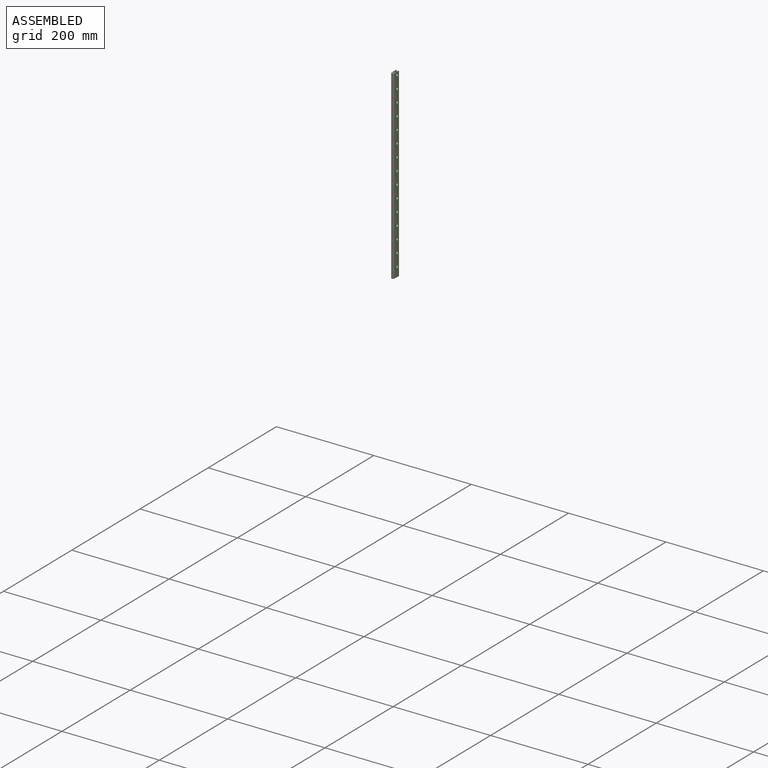
[diagram: assembled view]
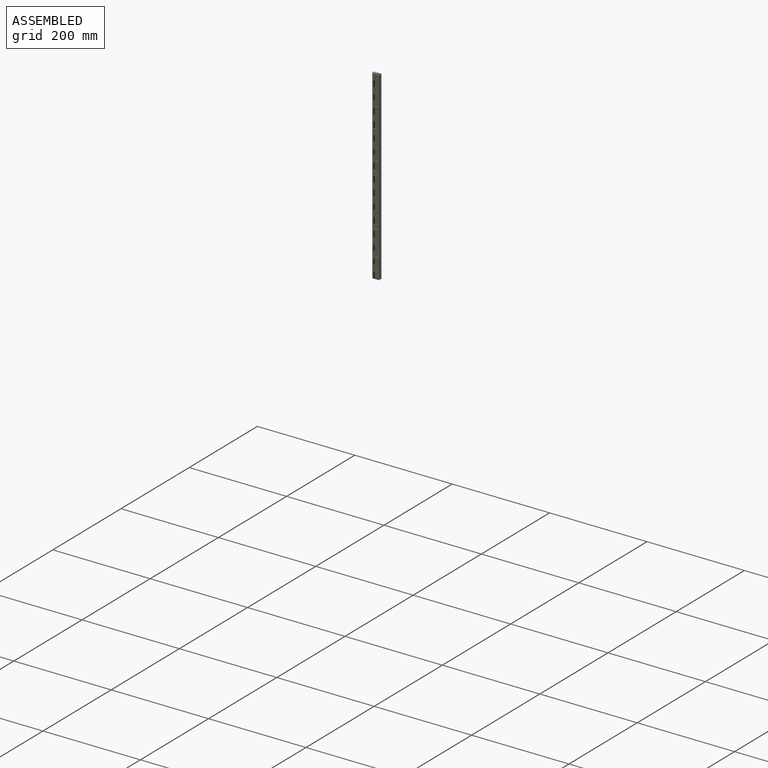
[diagram: assembled view, second angle]
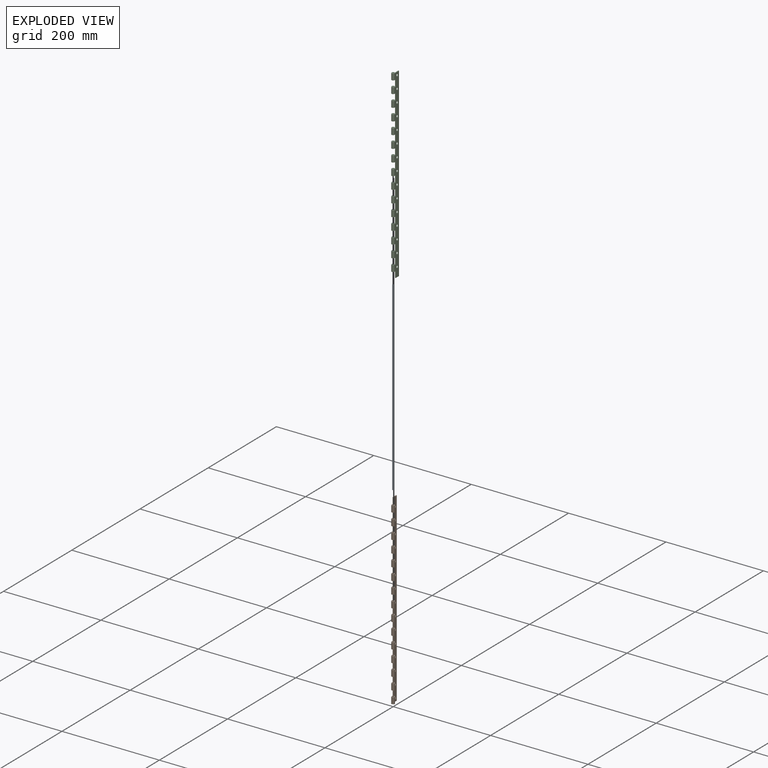
[diagram: exploded view]
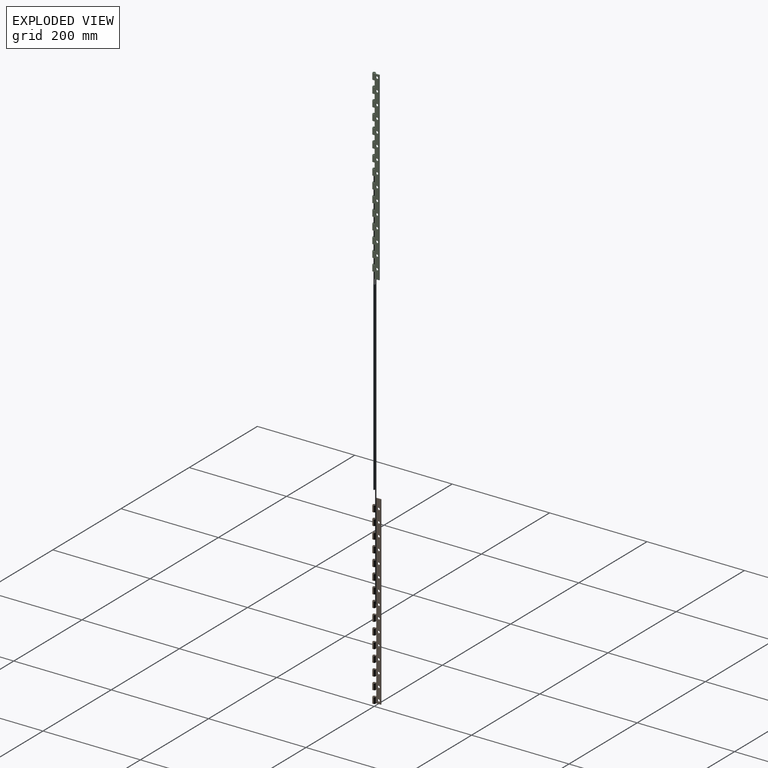
[diagram: exploded view, second angle]
ASSEMBLY  parts=3 mates=2
PART A: 3 faces, bbox 3.2x3.2x381 mm
  f0: cylinder r=1.59mm len=381mm, axis (0,0,-1), area 3800.3mm2, adj f1,f2
  f1: plane 3.18x3.18mm, normal (0,0,1), area 7.9mm2, adj f0
  f2: plane 3.18x3.18mm, normal (0,0,-1), area 7.9mm2, adj f0
PART B: 139 faces, bbox 6.4x15.9x381 mm
  f0: plane 12.7x1.08mm, normal (0,1,0), area 13.7mm2, adj f43,f57,f114,f126
  f1: plane 12.7x1.08mm, normal (0,1,0), area 13.7mm2, adj f44,f58,f123,f127
  f2: plane 12.7x1.08mm, normal (0,1,0), area 13.7mm2, adj f45,f60,f111,f113
  f3: plane 12.7x1.08mm, normal (0,1,0), area 13.7mm2, adj f46,f61,f108,f110
  f4: plane 12.7x1.08mm, normal (0,1,0), area 13.7mm2, adj f47,f62,f105,f107
  f5: plane 12.7x1.08mm, normal (0,1,0), area 13.7mm2, adj f48,f63,f102,f104
  f6: plane 12.7x1.08mm, normal (0,1,0), area 13.7mm2, adj f49,f64,f99,f101
  f7: plane 12.7x1.08mm, normal (0,1,0), area 13.7mm2, adj f50,f65,f96,f98
  f8: plane 12.7x1.08mm, normal (0,1,0), area 13.7mm2, adj f51,f66,f93,f95
  f9: plane 12.7x1.08mm, normal (0,1,0), area 13.7mm2, adj f52,f67,f90,f92
  f10: plane 12.7x1.08mm, normal (0,1,0), area 13.7mm2, adj f53,f68,f87,f89
  f11: plane 12.7x1.08mm, normal (0,1,0), area 13.7mm2, adj f54,f69,f84,f86
  f12: plane 12.7x1.08mm, normal (0,1,0), area 13.7mm2, adj f55,f70,f81,f83
  f13: plane 12.7x1.08mm, normal (0,1,0), area 13.7mm2, adj f56,f71,f80,f137
  f14: plane 381x12.7mm, normal (-1,0,0), area 3966.7mm2, adj f15,f16,f17,f18,f19,f20,f21,f22
  f15: cylinder r=1.59mm len=12.7mm, axis (0,0,-1), area 95mm2, adj f14,f29,f114,f126
  f16: cylinder r=1.59mm len=12.7mm, axis (0,0,-1), area 95mm2, adj f14,f30,f123,f127
  f17: cylinder r=1.59mm len=12.7mm, axis (0,0,-1), area 95mm2, adj f14,f31,f111,f113
  f18: cylinder r=1.59mm len=12.7mm, axis (0,0,-1), area 95mm2, adj f14,f32,f108,f110
  f19: cylinder r=1.59mm len=12.7mm, axis (0,0,-1), area 95mm2, adj f14,f33,f105,f107
  f20: cylinder r=1.59mm len=12.7mm, axis (0,0,-1), area 95mm2, adj f14,f34,f102,f104
  f21: cylinder r=1.59mm len=12.7mm, axis (0,0,-1), area 95mm2, adj f14,f35,f99,f101
  f22: cylinder r=1.59mm len=12.7mm, axis (0,0,-1), area 95mm2, adj f14,f36,f96,f98
  f23: cylinder r=1.59mm len=12.7mm, axis (0,0,-1), area 95mm2, adj f14,f37,f93,f95
  f24: cylinder r=1.59mm len=12.7mm, axis (0,0,-1), area 95mm2, adj f14,f38,f90,f92
  f25: cylinder r=1.59mm len=12.7mm, axis (0,0,-1), area 95mm2, adj f14,f39,f87,f89
  f26: cylinder r=1.59mm len=12.7mm, axis (0,0,-1), area 95mm2, adj f14,f40,f84,f86
  f27: cylinder r=1.59mm len=12.7mm, axis (0,0,-1), area 95mm2, adj f14,f41,f81,f83
  f28: cylinder r=1.59mm len=12.7mm, axis (0,0,-1), area 95mm2, adj f14,f42,f80,f137
  f29: plane 12.7x1.08mm, normal (0,-1,0), area 13.7mm2, adj f15,f43,f114,f126
  f30: plane 12.7x1.08mm, normal (0,-1,0), area 13.7mm2, adj f16,f44,f123,f127
  f31: plane 12.7x1.08mm, normal (0,-1,0), area 13.7mm2, adj f17,f45,f111,f113
  f32: plane 12.7x1.08mm, normal (0,-1,0), area 13.7mm2, adj f18,f46,f108,f110
  f33: plane 12.7x1.08mm, normal (0,-1,0), area 13.7mm2, adj f19,f47,f105,f107
  f34: plane 12.7x1.08mm, normal (0,-1,0), area 13.7mm2, adj f20,f48,f102,f104
  f35: plane 12.7x1.08mm, normal (0,-1,0), area 13.7mm2, adj f21,f49,f99,f101
  f36: plane 12.7x1.08mm, normal (0,-1,0), area 13.7mm2, adj f22,f50,f96,f98
  f37: plane 12.7x1.08mm, normal (0,-1,0), area 13.7mm2, adj f23,f51,f93,f95
  f38: plane 12.7x1.08mm, normal (0,-1,0), area 13.7mm2, adj f24,f52,f90,f92
  f39: plane 12.7x1.08mm, normal (0,-1,0), area 13.7mm2, adj f25,f53,f87,f89
  f40: plane 12.7x1.08mm, normal (0,-1,0), area 13.7mm2, adj f26,f54,f84,f86
  f41: plane 12.7x1.08mm, normal (0,-1,0), area 13.7mm2, adj f27,f55,f81,f83
  f42: plane 12.7x1.08mm, normal (0,-1,0), area 13.7mm2, adj f28,f56,f80,f137
  f43: plane 12.7x1.59mm, normal (1,0,0), area 20.2mm2, adj f0,f29,f114,f126
  f44: plane 12.7x1.59mm, normal (1,0,0), area 20.2mm2, adj f1,f30,f123,f127
  f45: plane 12.7x1.59mm, normal (1,0,0), area 20.2mm2, adj f2,f31,f111,f113
  f46: plane 12.7x1.59mm, normal (1,0,0), area 20.2mm2, adj f3,f32,f108,f110
  f47: plane 12.7x1.59mm, normal (1,0,0), area 20.2mm2, adj f4,f33,f105,f107
  f48: plane 12.7x1.59mm, normal (1,0,0), area 20.2mm2, adj f5,f34,f102,f104
  f49: plane 12.7x1.59mm, normal (1,0,0), area 20.2mm2, adj f6,f35,f99,f101
  f50: plane 12.7x1.59mm, normal (1,0,0), area 20.2mm2, adj f7,f36,f96,f98
  f51: plane 12.7x1.59mm, normal (1,0,0), area 20.2mm2, adj f8,f37,f93,f95
  f52: plane 12.7x1.59mm, normal (1,0,0), area 20.2mm2, adj f9,f38,f90,f92
  f53: plane 12.7x1.59mm, normal (1,0,0), area 20.2mm2, adj f10,f39,f87,f89
  f54: plane 12.7x1.59mm, normal (1,0,0), area 20.2mm2, adj f11,f40,f84,f86
  f55: plane 12.7x1.59mm, normal (1,0,0), area 20.2mm2, adj f12,f41,f81,f83
  f56: plane 12.7x1.59mm, normal (1,0,0), area 20.2mm2, adj f13,f42,f80,f137
  f57: cylinder r=3.17mm len=12.7mm, axis (0,0,-1), area 190mm2, adj f0,f78,f114,f126
  f58: cylinder r=3.17mm len=12.7mm, axis (0,0,-1), area 190mm2, adj f1,f78,f123,f127
  f59: cylinder r=3.17mm len=12.7mm, axis (0,0,-1), area 190mm2, adj f77,f78,f79,f124
  f60: cylinder r=3.17mm len=12.7mm, axis (0,0,-1), area 190mm2, adj f2,f78,f111,f113
  f61: cylinder r=3.17mm len=12.7mm, axis (0,0,-1), area 190mm2, adj f3,f78,f108,f110
  f62: cylinder r=3.17mm len=12.7mm, axis (0,0,-1), area 190mm2, adj f4,f78,f105,f107
  f63: cylinder r=3.17mm len=12.7mm, axis (0,0,-1), area 190mm2, adj f5,f78,f102,f104
  f64: cylinder r=3.17mm len=12.7mm, axis (0,0,-1), area 190mm2, adj f6,f78,f99,f101
  f65: cylinder r=3.17mm len=12.7mm, axis (0,0,-1), area 190mm2, adj f7,f78,f96,f98
  f66: cylinder r=3.17mm len=12.7mm, axis (0,0,-1), area 190mm2, adj f8,f78,f93,f95
  f67: cylinder r=3.17mm len=12.7mm, axis (0,0,-1), area 190mm2, adj f9,f78,f90,f92
  f68: cylinder r=3.17mm len=12.7mm, axis (0,0,-1), area 190mm2, adj f10,f78,f87,f89
  f69: cylinder r=3.17mm len=12.7mm, axis (0,0,-1), area 190mm2, adj f11,f78,f84,f86
  f70: cylinder r=3.17mm len=12.7mm, axis (0,0,-1), area 190mm2, adj f12,f78,f81,f83
  f71: cylinder r=3.17mm len=12.7mm, axis (0,0,-1), area 190mm2, adj f13,f78,f80,f137
  f72: plane 9.53x1.59mm, normal (0,0,-1), area 15.1mm2, adj f14,f73,f78,f138
  f73: plane 381x1.59mm, normal (0,1,0), area 604.8mm2, adj f14,f72,f78,f79
  f74: cylinder r=1.59mm len=12.7mm, axis (0,0,-1), area 95mm2, adj f14,f75,f79,f124
  f75: plane 12.7x1.08mm, normal (0,-1,0), area 13.7mm2, adj f74,f76,f79,f124
  f76: plane 12.7x1.59mm, normal (1,0,0), area 20.2mm2, adj f75,f77,f79,f124
  f77: plane 12.7x1.08mm, normal (0,1,0), area 13.7mm2, adj f59,f76,f79,f124
  f78: plane 381x12.7mm, normal (1,0,0), area 3966.7mm2, adj f57,f58,f59,f60,f61,f62,f63,f64
  f79: plane 15.88x6.35mm, normal (0,0,1), area 39.7mm2, adj f14,f59,f73,f74,f75,f76,f77,f78
  f80: plane 6.35x6.35mm, normal (0,0,1), area 24.6mm2, adj f13,f14,f28,f42,f56,f71,f78,f82
  f81: plane 6.35x6.35mm, normal (0,0,-1), area 24.6mm2, adj f12,f14,f27,f41,f55,f70,f78,f82
  f82: plane 12.7x1.59mm, normal (0,-1,0), area 20.2mm2, adj f14,f78,f80,f81
  f83: plane 6.35x6.35mm, normal (0,0,1), area 24.6mm2, adj f12,f14,f27,f41,f55,f70,f78,f85
  f84: plane 6.35x6.35mm, normal (0,0,-1), area 24.6mm2, adj f11,f14,f26,f40,f54,f69,f78,f85
  f85: plane 12.7x1.59mm, normal (0,-1,0), area 20.2mm2, adj f14,f78,f83,f84
  f86: plane 6.35x6.35mm, normal (0,0,1), area 24.6mm2, adj f11,f14,f26,f40,f54,f69,f78,f88
  f87: plane 6.35x6.35mm, normal (0,0,-1), area 24.6mm2, adj f10,f14,f25,f39,f53,f68,f78,f88
  f88: plane 12.7x1.59mm, normal (0,-1,0), area 20.2mm2, adj f14,f78,f86,f87
  f89: plane 6.35x6.35mm, normal (0,0,1), area 24.6mm2, adj f10,f14,f25,f39,f53,f68,f78,f91
  f90: plane 6.35x6.35mm, normal (0,0,-1), area 24.6mm2, adj f9,f14,f24,f38,f52,f67,f78,f91
  f91: plane 12.7x1.59mm, normal (0,-1,0), area 20.2mm2, adj f14,f78,f89,f90
  f92: plane 6.35x6.35mm, normal (0,0,1), area 24.6mm2, adj f9,f14,f24,f38,f52,f67,f78,f94
  f93: plane 6.35x6.35mm, normal (0,0,-1), area 24.6mm2, adj f8,f14,f23,f37,f51,f66,f78,f94
  f94: plane 12.7x1.59mm, normal (0,-1,0), area 20.2mm2, adj f14,f78,f92,f93
  f95: plane 6.35x6.35mm, normal (0,0,1), area 24.6mm2, adj f8,f14,f23,f37,f51,f66,f78,f97
  f96: plane 6.35x6.35mm, normal (0,0,-1), area 24.6mm2, adj f7,f14,f22,f36,f50,f65,f78,f97
  f97: plane 12.7x1.59mm, normal (0,-1,0), area 20.2mm2, adj f14,f78,f95,f96
  f98: plane 6.35x6.35mm, normal (0,0,1), area 24.6mm2, adj f7,f14,f22,f36,f50,f65,f78,f100
  f99: plane 6.35x6.35mm, normal (0,0,-1), area 24.6mm2, adj f6,f14,f21,f35,f49,f64,f78,f100
  f100: plane 12.7x1.59mm, normal (0,-1,0), area 20.2mm2, adj f14,f78,f98,f99
  f101: plane 6.35x6.35mm, normal (0,0,1), area 24.6mm2, adj f6,f14,f21,f35,f49,f64,f78,f103
  f102: plane 6.35x6.35mm, normal (0,0,-1), area 24.6mm2, adj f5,f14,f20,f34,f48,f63,f78,f103
  f103: plane 12.7x1.59mm, normal (0,-1,0), area 20.2mm2, adj f14,f78,f101,f102
  f104: plane 6.35x6.35mm, normal (0,0,1), area 24.6mm2, adj f5,f14,f20,f34,f48,f63,f78,f106
  f105: plane 6.35x6.35mm, normal (0,0,-1), area 24.6mm2, adj f4,f14,f19,f33,f47,f62,f78,f106
  f106: plane 12.7x1.59mm, normal (0,-1,0), area 20.2mm2, adj f14,f78,f104,f105
  f107: plane 6.35x6.35mm, normal (0,0,1), area 24.6mm2, adj f4,f14,f19,f33,f47,f62,f78,f109
  f108: plane 6.35x6.35mm, normal (0,0,-1), area 24.6mm2, adj f3,f14,f18,f32,f46,f61,f78,f109
  f109: plane 12.7x1.59mm, normal (0,-1,0), area 20.2mm2, adj f14,f78,f107,f108
  f110: plane 6.35x6.35mm, normal (0,0,1), area 24.6mm2, adj f3,f14,f18,f32,f46,f61,f78,f112
  f111: plane 6.35x6.35mm, normal (0,0,-1), area 24.6mm2, adj f2,f14,f17,f31,f45,f60,f78,f112
  f112: plane 12.7x1.59mm, normal (0,-1,0), area 20.2mm2, adj f14,f78,f110,f111
  f113: plane 6.35x6.35mm, normal (0,0,1), area 24.6mm2, adj f2,f14,f17,f31,f45,f60,f78,f115
  f114: plane 6.35x6.35mm, normal (0,0,-1), area 24.6mm2, adj f0,f14,f15,f29,f43,f57,f78,f115
  f115: plane 12.7x1.59mm, normal (0,-1,0), area 20.2mm2, adj f14,f78,f113,f114
  f116: cylinder r=2.38mm len=4.76mm, axis (1,0,0), area 23.8mm2, adj f14,f78
  f117: cylinder r=2.38mm len=4.76mm, axis (1,0,0), area 23.8mm2, adj f14,f78
  f118: cylinder r=2.38mm len=4.76mm, axis (1,0,0), area 23.8mm2, adj f14,f78
  f119: cylinder r=2.38mm len=4.76mm, axis (1,0,0), area 23.8mm2, adj f14,f78
  f120: cylinder r=2.38mm len=4.76mm, axis (1,0,0), area 23.8mm2, adj f14,f78
  f121: cylinder r=2.38mm len=4.76mm, axis (1,0,0), area 23.8mm2, adj f14,f78
  f122: cylinder r=2.38mm len=4.76mm, axis (1,0,0), area 23.8mm2, adj f14,f78
  f123: plane 6.35x6.35mm, normal (0,0,1), area 24.6mm2, adj f1,f14,f16,f30,f44,f58,f78,f125
  f124: plane 6.35x6.35mm, normal (0,0,-1), area 24.6mm2, adj f14,f59,f74,f75,f76,f77,f78,f125
  f125: plane 12.7x1.59mm, normal (0,-1,0), area 20.2mm2, adj f14,f78,f123,f124
  f126: plane 6.35x6.35mm, normal (0,0,1), area 24.6mm2, adj f0,f14,f15,f29,f43,f57,f78,f128
  f127: plane 6.35x6.35mm, normal (0,0,-1), area 24.6mm2, adj f1,f14,f16,f30,f44,f58,f78,f128
  f128: plane 12.7x1.59mm, normal (0,-1,0), area 20.2mm2, adj f14,f78,f126,f127
  f129: cylinder r=2.38mm len=4.76mm, axis (1,0,0), area 23.8mm2, adj f14,f78
  f130: cylinder r=2.38mm len=4.76mm, axis (1,0,0), area 23.8mm2, adj f14,f78
  f131: cylinder r=2.38mm len=4.76mm, axis (1,0,0), area 23.8mm2, adj f14,f78
  f132: cylinder r=2.38mm len=4.76mm, axis (1,0,0), area 23.8mm2, adj f14,f78
  f133: cylinder r=2.38mm len=4.76mm, axis (1,0,0), area 23.8mm2, adj f14,f78
  f134: cylinder r=2.38mm len=4.76mm, axis (1,0,0), area 23.8mm2, adj f14,f78
  f135: cylinder r=2.38mm len=4.76mm, axis (1,0,0), area 23.8mm2, adj f14,f78
  f136: cylinder r=2.38mm len=4.76mm, axis (1,0,0), area 23.8mm2, adj f14,f78
  f137: plane 6.35x6.35mm, normal (0,0,-1), area 24.6mm2, adj f13,f14,f28,f42,f56,f71,f78,f138
  f138: plane 12.7x1.59mm, normal (0,-1,0), area 20.2mm2, adj f14,f72,f78,f137
PART C: same geometry as B
PLACE A at identity
PLACE B rot(axis=(0,-1,0),180deg) t=(0,0,0)mm
PLACE C at identity fixed
MATE revolute B.f57 <-> C.f57  axis (0,0,1) through (0,0,177.8)mm
MATE fastened C.f57 <-> A.f0  axis (0,0,1) through (0,0,190.5)mm
